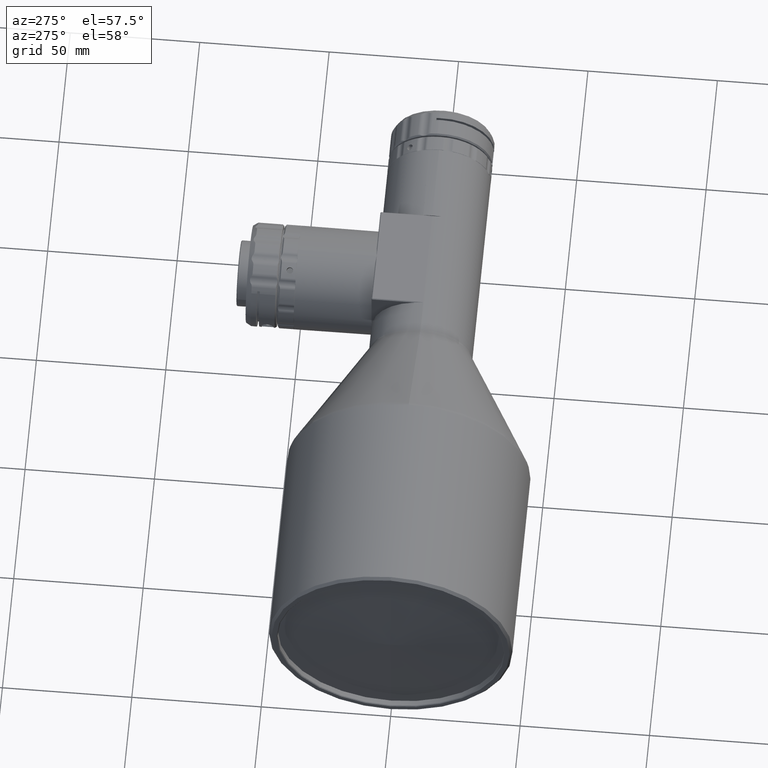
[diagram: clean part render]
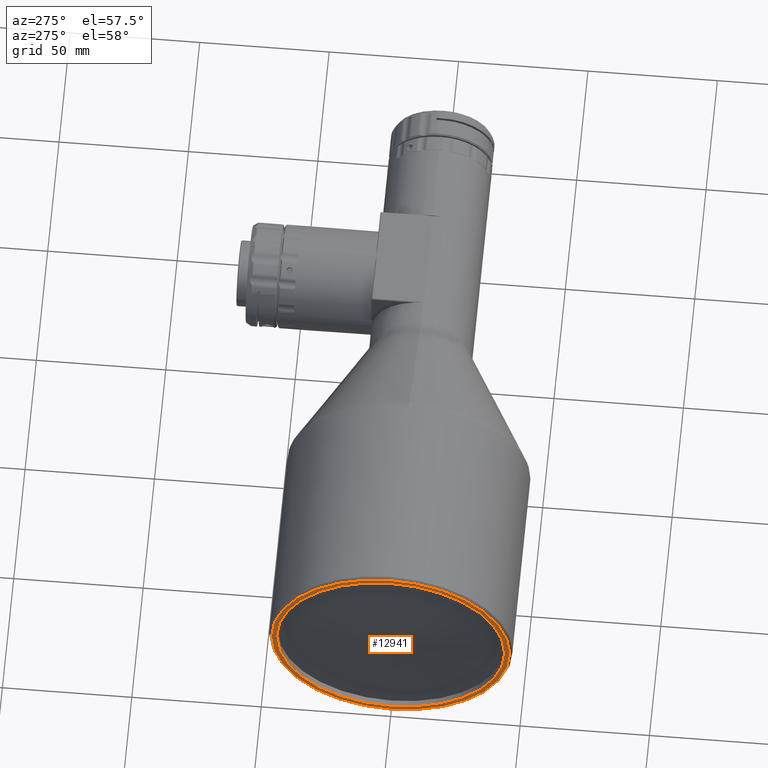
[diagram: same view with one face highlighted and labeled with its STEP entity id]
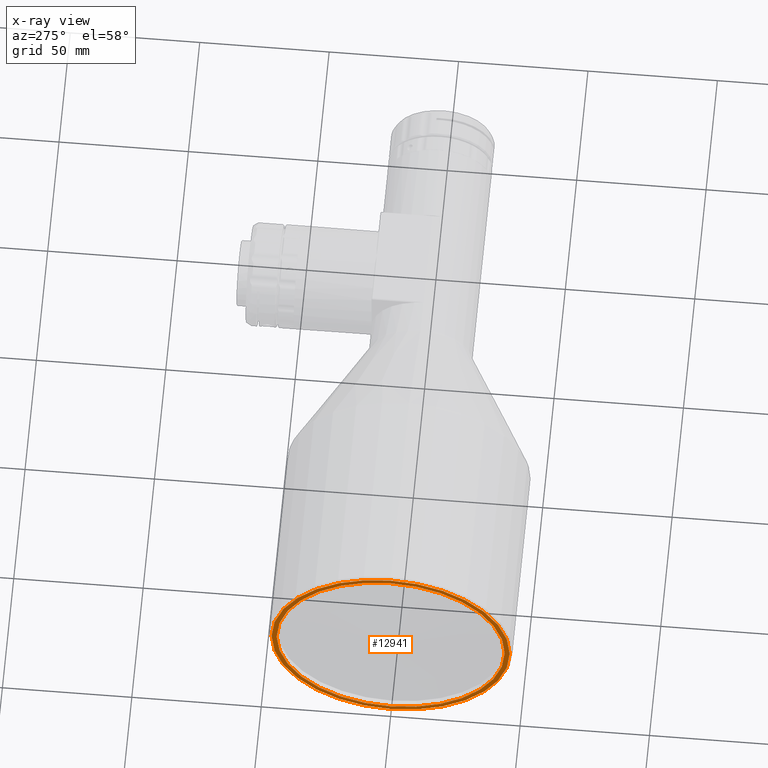
[diagram: x-ray of the same camera — body ghosted, the highlighted face saturated]
A machine part, auxiliary view. The second image highlights one B-rep face of the part: STEP entity #12941.
The next image is the same camera in x-ray: the body ghosted, the highlighted face saturated — about 0% of this face is hidden behind the body in this view.
In plain terms, the highlighted planar face has unit normal (1, -0, 0).
Its self-contained STEP definition (entity closure, byte-faithful):
#94 = CARTESIAN_POINT ( 'NONE',  ( 0.0000000000000000000, 0.0000000000000000000, 0.0000000000000000000 ) ) ;
#117 = CARTESIAN_POINT ( 'NONE',  ( 0.0000000000000000000, 0.0000000000000000000, 44.04999999999999700 ) ) ;
#446 = EDGE_LOOP ( 'NONE', ( #4584, #10355 ) ) ;
#1202 = DIRECTION ( 'NONE',  ( 0.0000000000000000000, 0.0000000000000000000, 1.000000000000000000 ) ) ;
#1927 = AXIS2_PLACEMENT_3D ( 'NONE', #10464, #11571, #13800 ) ;
#2051 = VERTEX_POINT ( 'NONE', #117 ) ;
#2081 = DIRECTION ( 'NONE',  ( 1.000000000000000000, 0.0000000000000000000, 0.0000000000000000000 ) ) ;
#2741 = EDGE_CURVE ( 'NONE', #4100, #9018, #5622, .T. ) ;
#3438 = DIRECTION ( 'NONE',  ( -1.000000000000000000, 0.0000000000000000000, 0.0000000000000000000 ) ) ;
#3456 = EDGE_CURVE ( 'NONE', #9018, #4100, #7192, .T. ) ;
#3689 = FACE_BOUND ( 'NONE', #11971, .T. ) ;
#3961 = PLANE ( 'NONE',  #1927 ) ;
#4100 = VERTEX_POINT ( 'NONE', #12558 ) ;
#4584 = ORIENTED_EDGE ( 'NONE', *, *, #3456, .F. ) ;
#4687 = CIRCLE ( 'NONE', #4915, 44.04999999999999700 ) ;
#4725 = VERTEX_POINT ( 'NONE', #14109 ) ;
#4915 = AXIS2_PLACEMENT_3D ( 'NONE', #12186, #5547, #13314 ) ;
#5542 = CARTESIAN_POINT ( 'NONE',  ( 0.0000000000000000000, 0.0000000000000000000, 0.0000000000000000000 ) ) ;
#5547 = DIRECTION ( 'NONE',  ( -1.000000000000000000, 0.0000000000000000000, 0.0000000000000000000 ) ) ;
#5622 = CIRCLE ( 'NONE', #9064, 46.00000000000000000 ) ;
#6053 = CARTESIAN_POINT ( 'NONE',  ( 0.0000000000000000000, 0.0000000000000000000, 0.0000000000000000000 ) ) ;
#6598 = EDGE_CURVE ( 'NONE', #2051, #4725, #4687, .T. ) ;
#6654 = FACE_OUTER_BOUND ( 'NONE', #446, .T. ) ;
#7192 = CIRCLE ( 'NONE', #8968, 46.00000000000000000 ) ;
#8794 = DIRECTION ( 'NONE',  ( 0.0000000000000000000, 0.0000000000000000000, -1.000000000000000000 ) ) ;
#8968 = AXIS2_PLACEMENT_3D ( 'NONE', #6053, #13839, #13798 ) ;
#9018 = VERTEX_POINT ( 'NONE', #13954 ) ;
#9064 = AXIS2_PLACEMENT_3D ( 'NONE', #5542, #2081, #8794 ) ;
#10355 = ORIENTED_EDGE ( 'NONE', *, *, #2741, .F. ) ;
#10464 = CARTESIAN_POINT ( 'NONE',  ( 0.0000000000000000000, -46.55200000000000000, 46.55200000000000000 ) ) ;
#10601 = EDGE_CURVE ( 'NONE', #4725, #2051, #11660, .T. ) ;
#10955 = ORIENTED_EDGE ( 'NONE', *, *, #10601, .F. ) ;
#11571 = DIRECTION ( 'NONE',  ( 1.000000000000000000, -0.0000000000000000000, 0.0000000000000000000 ) ) ;
#11617 = ORIENTED_EDGE ( 'NONE', *, *, #6598, .F. ) ;
#11660 = CIRCLE ( 'NONE', #12650, 44.04999999999999700 ) ;
#11971 = EDGE_LOOP ( 'NONE', ( #11617, #10955 ) ) ;
#12186 = CARTESIAN_POINT ( 'NONE',  ( 0.0000000000000000000, 0.0000000000000000000, 0.0000000000000000000 ) ) ;
#12558 = CARTESIAN_POINT ( 'NONE',  ( 0.0000000000000000000, 5.694607616035192300E-015, 46.00000000000000000 ) ) ;
#12650 = AXIS2_PLACEMENT_3D ( 'NONE', #94, #3438, #1202 ) ;
#12941 = ADVANCED_FACE ( 'NONE', ( #3689, #6654 ), #3961, .F. ) ;
#13314 = DIRECTION ( 'NONE',  ( 0.0000000000000000000, 0.0000000000000000000, 1.000000000000000000 ) ) ;
#13798 = DIRECTION ( 'NONE',  ( 0.0000000000000000000, 0.0000000000000000000, -1.000000000000000000 ) ) ;
#13800 = DIRECTION ( 'NONE',  ( 0.0000000000000000000, 0.0000000000000000000, -1.000000000000000000 ) ) ;
#13839 = DIRECTION ( 'NONE',  ( 1.000000000000000000, 0.0000000000000000000, 0.0000000000000000000 ) ) ;
#13954 = CARTESIAN_POINT ( 'NONE',  ( 0.0000000000000000000, 0.0000000000000000000, -46.00000000000000000 ) ) ;
#14109 = CARTESIAN_POINT ( 'NONE',  ( 0.0000000000000000000, 5.394569150244090700E-015, -44.04999999999999700 ) ) ;